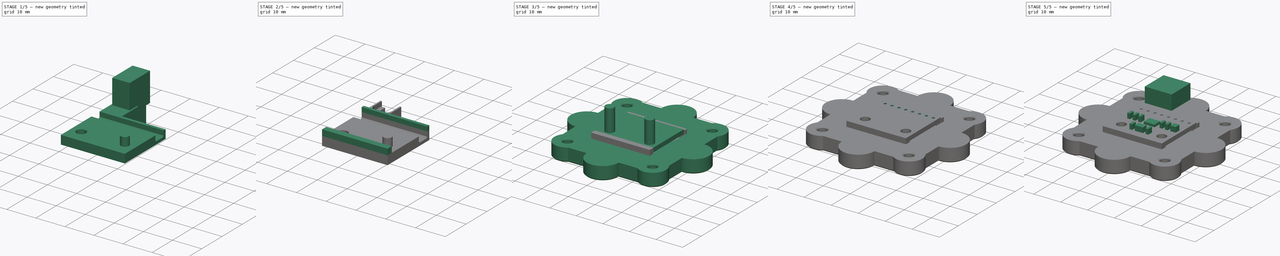
[diagram: build sequence overview — one tinted view per stage of 5, left to right]
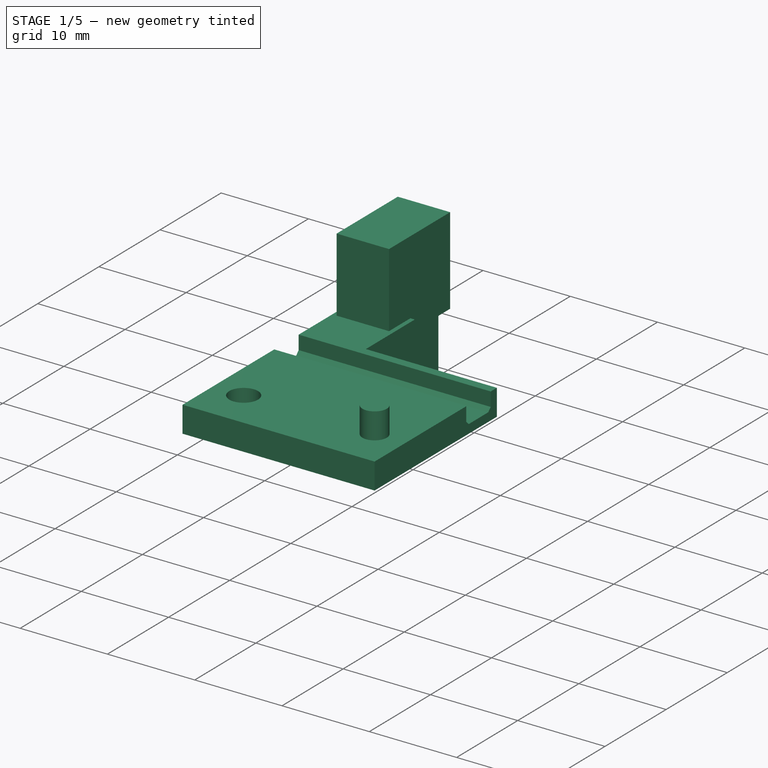
[diagram: stage 1 of 5 — iso view after this stage's code; geometry added in this stage tinted green]
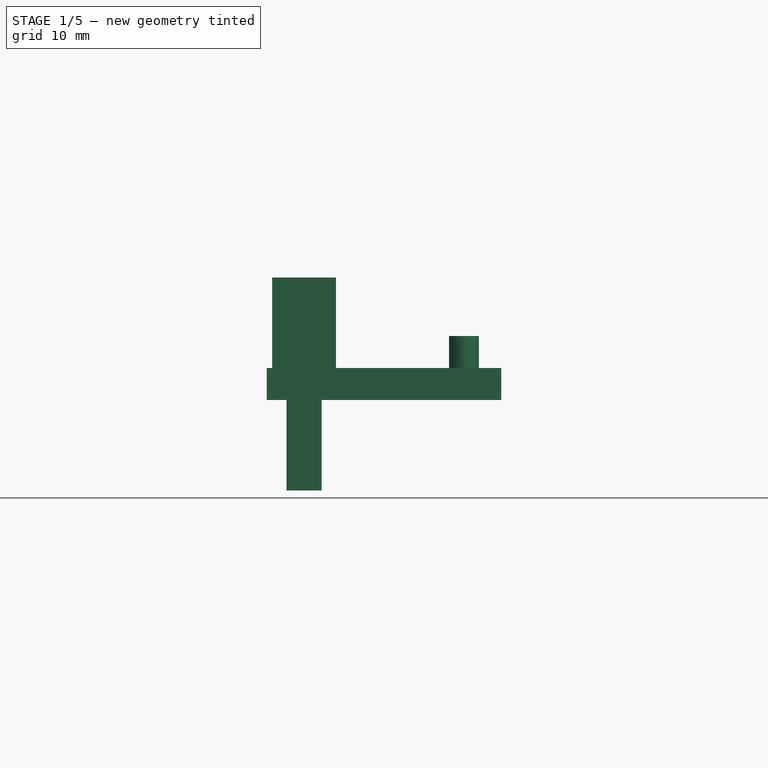
[diagram: stage 1 of 5 — front view after this stage's code; geometry added in this stage tinted green]
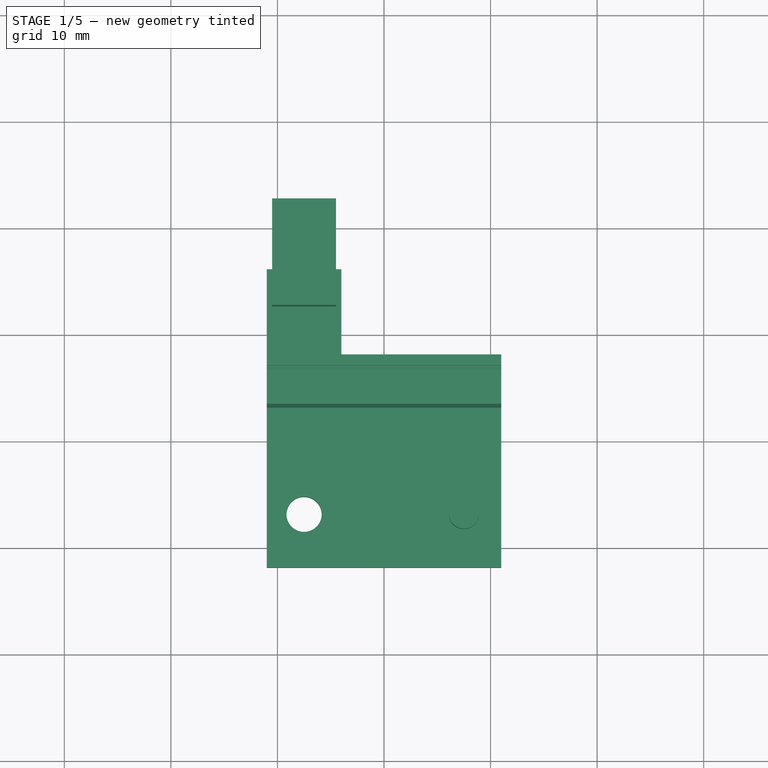
[diagram: stage 1 of 5 — top view after this stage's code; geometry added in this stage tinted green]
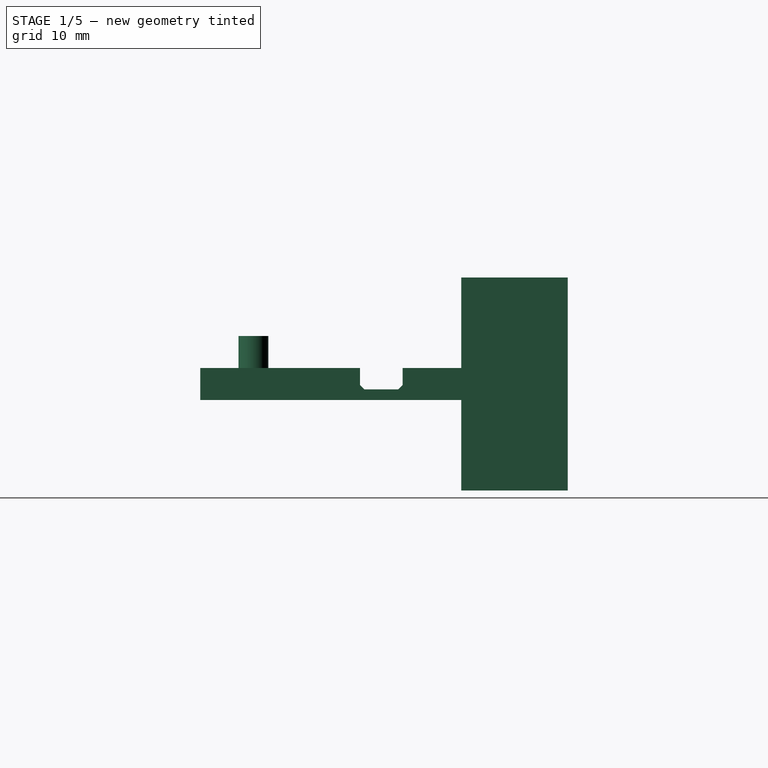
[diagram: stage 1 of 5 — right view after this stage's code; geometry added in this stage tinted green]
FCSTD DOCUMENT  (FreeCAD 0.19R24291 (Git))
Label: ADXL345-mounter
License: All rights reserved
LicenseURL: http://en.wikipedia.org/wiki/All_rights_reserved
objects: Part::Box×19, Part::Cylinder×14, Part::Cut×9, Part::MultiFuse×5, Sketcher::SketchObject×5, Part::Chamfer×3, PartDesign::Pocket×3, PartDesign::Pad×3, PartDesign::FeatureBase×1, PartDesign::Chamfer×1, PartDesign::Body×1
note: 71 computed .brp shape members not serialized (recipe doc carries the construction recipe); baked Part::Feature solids carry a one-line shape summary decoded from their .brp

FEATURE [Part::Cylinder] Cylinder012
  Angle = 360
  AttacherType = Attacher::AttachEngine3D
  Height = 3
  Placement = pos=(7.5,3,0) rot=(0,0,1;0rad)
  Radius = 1.4
FEATURE [Part::Box] Box011  label="Cube011"
  AttacherType = Attacher::AttachEngine3D
  Height = 3
  Length = 22
  Placement = pos=(-11,-2,-3) rot=(0,0,1;0rad)
  Width = 28
FEATURE [Part::Box] Box013  label="Cube013"
  AttacherType = Attacher::AttachEngine3D
  Height = 5
  Length = 22
  Placement = pos=(-11,13,-2) rot=(0,0,1;0rad)
  Width = 4
FEATURE [Part::Chamfer] Chamfer
  Base = -> Box013
  Edges = 2 edges r=0.4: [Edge9,Edge11]
FEATURE [Part::Box] Box014  label="Cube014"
  AttacherType = Attacher::AttachEngine3D
  Height = 10
  Length = 16
  Placement = pos=(-4,18,-4.5) rot=(0,0,1;0rad)
  Width = 12
FEATURE [Part::Cylinder] Cylinder013
  Angle = 360
  AttacherType = Attacher::AttachEngine3D
  Height = 10
  Placement = pos=(-7.5,3,-3.5) rot=(0,0,1;0rad)
  Radius = 1.65
FEATURE [Part::Cut] Cut002
  Base = -> Box011
  Tool = -> Chamfer
FEATURE [Part::Cut] Cut003
  Base = -> Cut002
  Tool = -> Box014
FEATURE [Part::Cut] Cut009
  Base = -> Cut003
  Tool = -> Cylinder013
FEATURE [Part::MultiFuse] Fusion002008
  Shapes = -> [Cut009,Cylinder012]
FEATURE [Part::Box] Box017  label="Cube017"
  AttacherType = Attacher::AttachEngine3D
  Height = 10
  Length = 3.3
  Placement = pos=(-9.15,22.5,-11.5) rot=(0,0,1;0rad)
  Width = 10
  expr: Length = 1.65 * 2
FEATURE [Part::Box] Box018  label="Cube018"
  AttacherType = Attacher::AttachEngine3D
  Height = 10
  Length = 6
  Placement = pos=(-10.5,22.5,-1.5) rot=(0,0,1;0rad)
  Width = 10
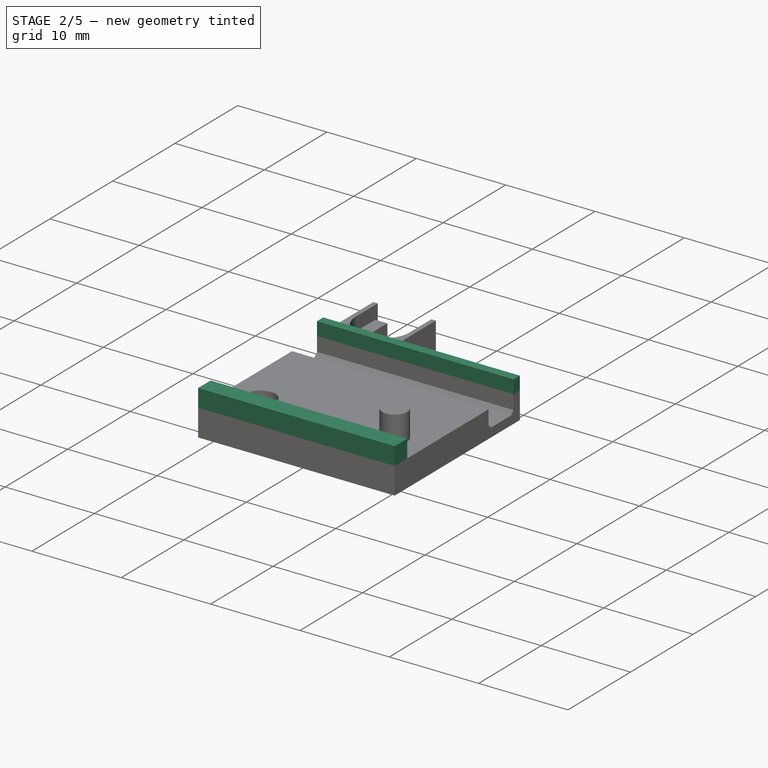
[diagram: stage 2 of 5 — iso view after this stage's code; geometry added in this stage tinted green]
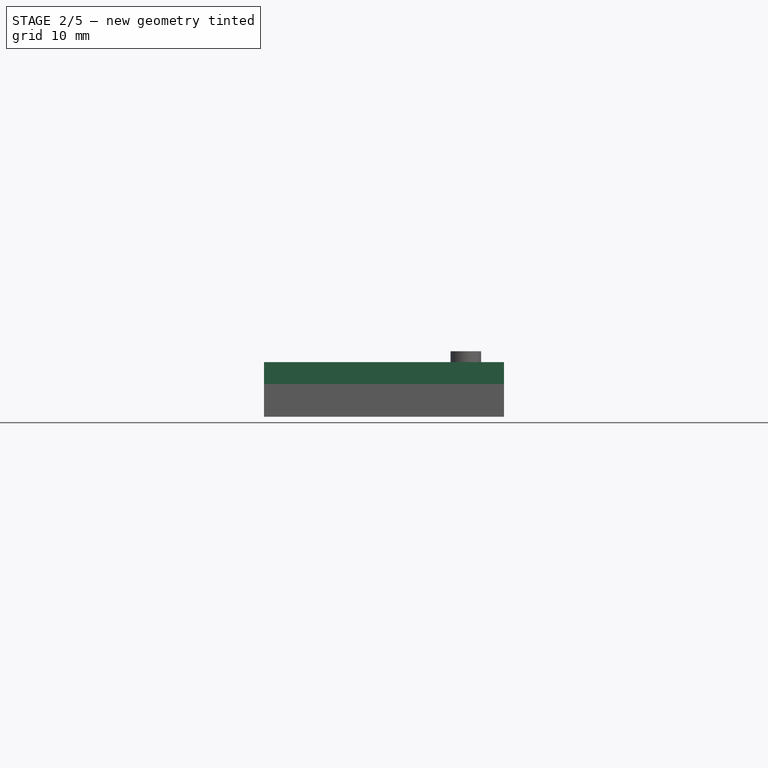
[diagram: stage 2 of 5 — front view after this stage's code; geometry added in this stage tinted green]
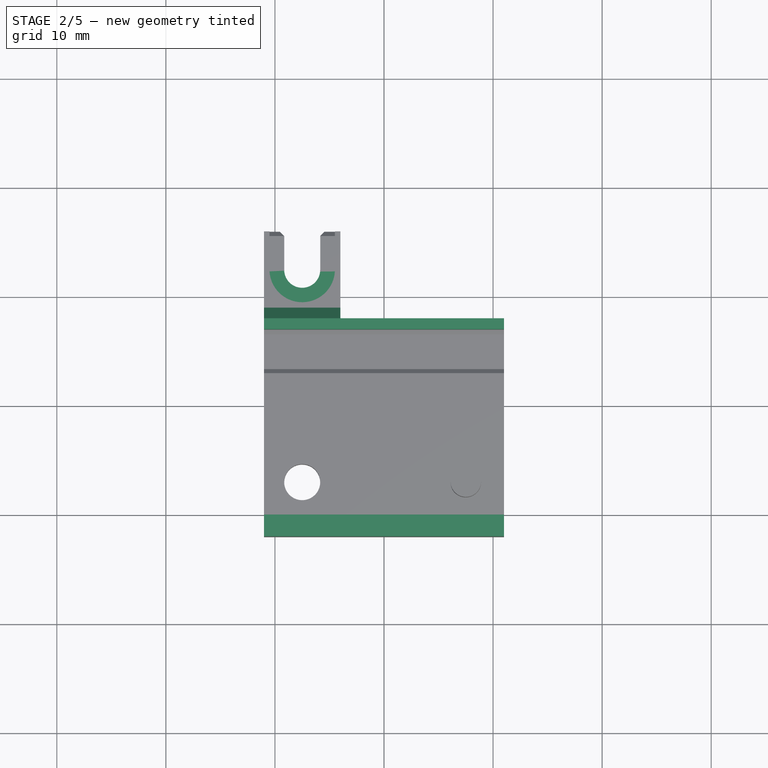
[diagram: stage 2 of 5 — top view after this stage's code; geometry added in this stage tinted green]
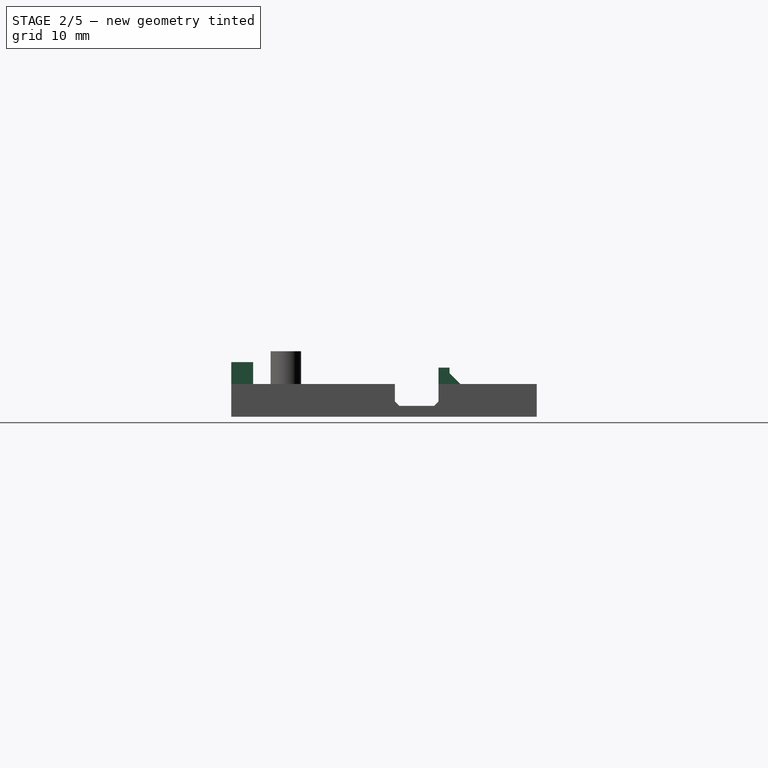
[diagram: stage 2 of 5 — right view after this stage's code; geometry added in this stage tinted green]
FEATURE [Part::Cylinder] Cylinder011
  Angle = 360
  AttacherType = Attacher::AttachEngine3D
  Height = 10
  Placement = pos=(-7.5,22.5,-1.5) rot=(0,0,1;0rad)
  Radius = 3
FEATURE [Part::Box] Box012  label="Cube012"
  AttacherType = Attacher::AttachEngine3D
  Height = 5
  Length = 22
  Placement = pos=(-11,-2,-3) rot=(0,0,1;0rad)
  Width = 2
FEATURE [Part::Cylinder] Cylinder014
  Angle = 360
  AttacherType = Attacher::AttachEngine3D
  Height = 10
  Placement = pos=(-7.5,22.5,-6.5) rot=(0,0,1;0rad)
  Radius = 1.65
FEATURE [Part::Box] Box015  label="Cube015"
  AttacherType = Attacher::AttachEngine3D
  Height = 1.5
  Length = 22
  Placement = pos=(-11,17,0) rot=(0,0,1;0rad)
  Width = 1
FEATURE [Part::Cut] Cut010
  Base = -> Fusion002008
  Tool = -> Cylinder011
FEATURE [Part::Cut] Cut011
  Base = -> Cut010
  Tool = -> Cylinder014
FEATURE [Part::MultiFuse] Fusion002009
  Shapes = -> [Box015,Cut011,Box012]
FEATURE [Part::Chamfer] Chamfer001
  Base = -> Fusion002009
  Edges = 1 edges r=1: [Edge10]
FEATURE [Part::Cut] Cut012
  Base = -> Chamfer001
  Tool = -> Box017
FEATURE [Part::Cut] Cut013
  Base = -> Cut012
  Tool = -> Box018
FEATURE [Part::Chamfer] Chamfer002  label="sensor-r1"
  Base = -> Cut013
  Edges = 4 edges r=0.4: [Edge41,Edge42,Edge68,Edge70]
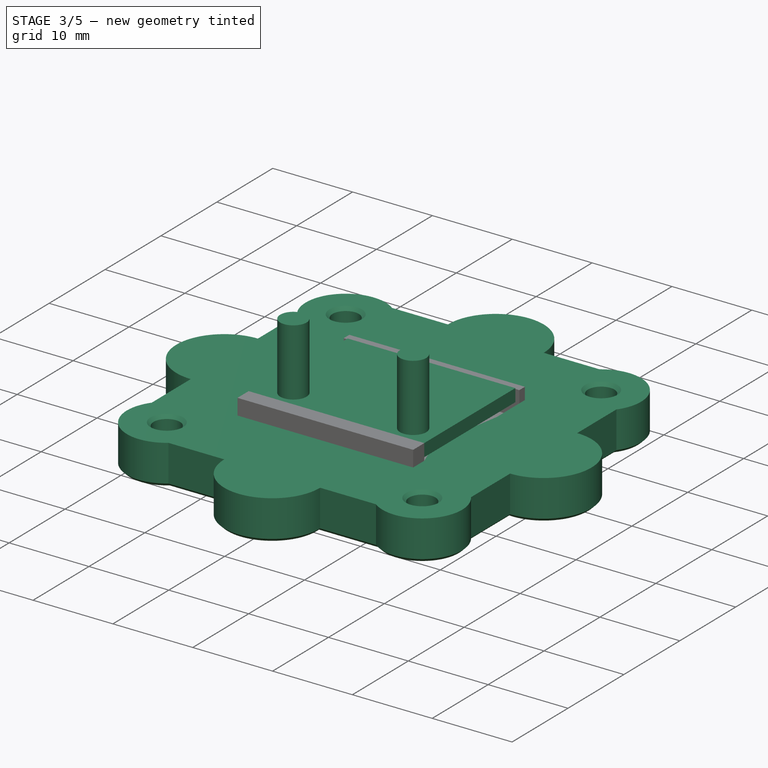
[diagram: stage 3 of 5 — iso view after this stage's code; geometry added in this stage tinted green]
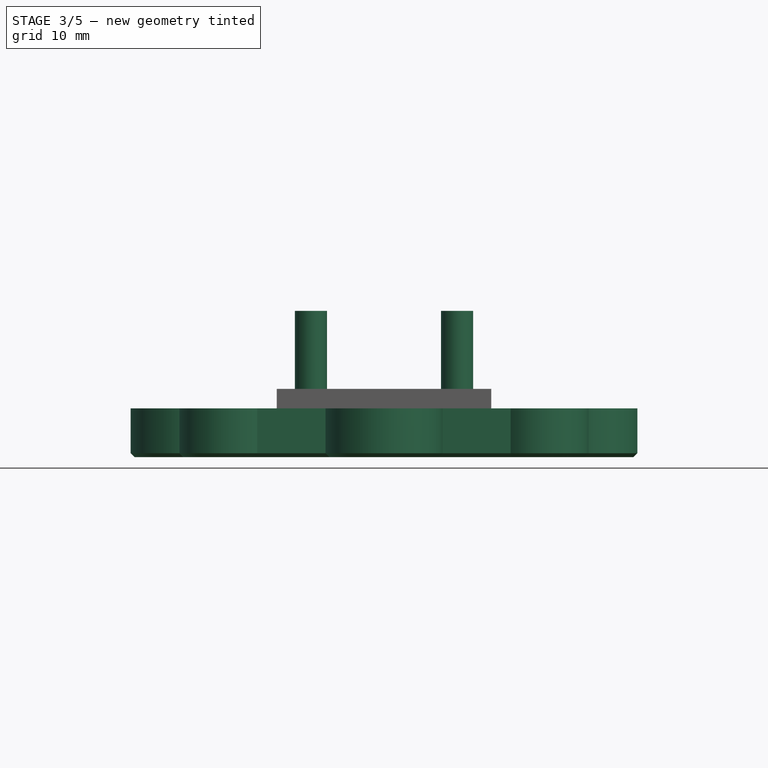
[diagram: stage 3 of 5 — front view after this stage's code; geometry added in this stage tinted green]
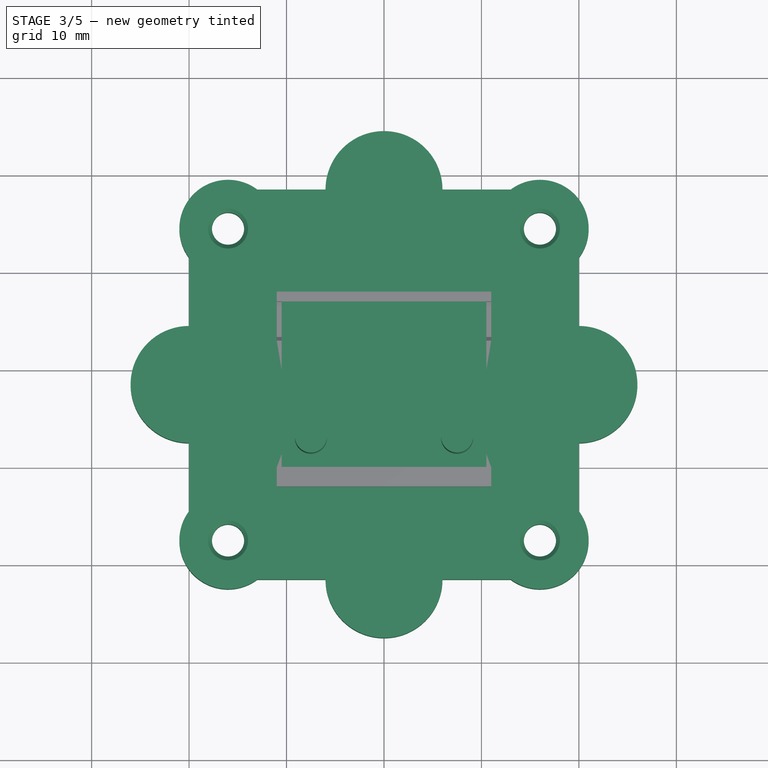
[diagram: stage 3 of 5 — top view after this stage's code; geometry added in this stage tinted green]
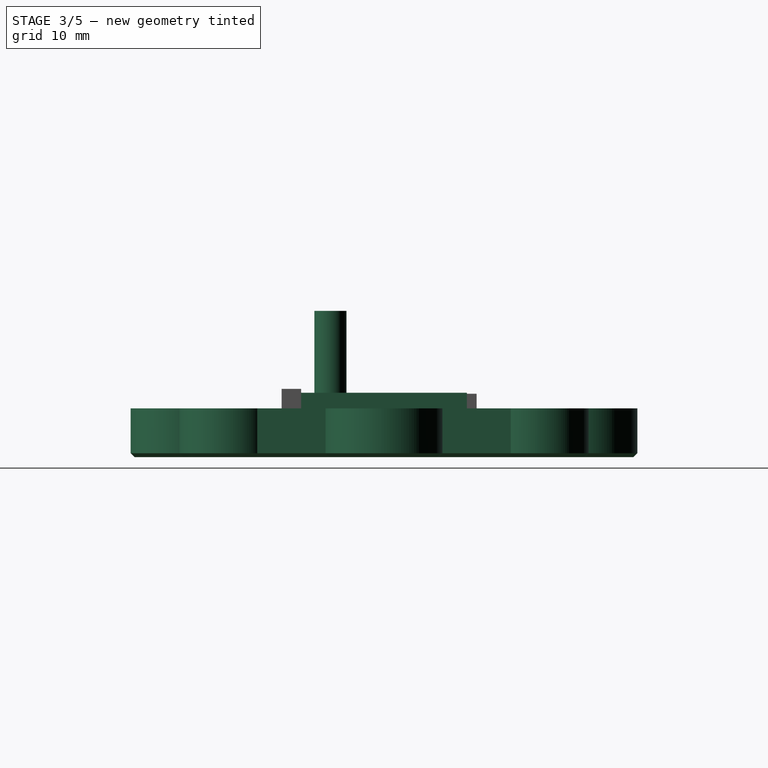
[diagram: stage 3 of 5 — right view after this stage's code; geometry added in this stage tinted green]
FEATURE [Part::Box] Box  label="Cube"
  AttacherType = Attacher::AttachEngine3D
  Height = 1.6
  Length = 21
  Placement = pos=(-10.5,0,0) rot=(0,0,1;0rad)
  Width = 17
FEATURE [Part::Cylinder] Cylinder
  Angle = 360
  AttacherType = Attacher::AttachEngine3D
  Height = 10
  Placement = pos=(-7.5,2.5,0) rot=(0,0,1;0rad)
  Radius = 1.65
FEATURE [Part::Cylinder] Cylinder001
  Angle = 360
  AttacherType = Attacher::AttachEngine3D
  Height = 10
  Placement = pos=(7.5,2.5,0) rot=(0,0,1;0rad)
  Radius = 1.65
FEATURE [Part::MultiFuse] Fusion
  Placement = pos=(0,0.5,0) rot=(0,0,1;0rad)
  Shapes = -> [Cylinder,Cylinder001]
FEATURE [PartDesign::FeatureBase] BaseFeature
  BaseFeature = -> Chamfer002
FEATURE [Sketcher::SketchObject] Sketch
  ExternalGeometry = -> [BaseFeature]
  FullyConstrained = true
  MapMode = 5
  Placement = pos=(0,0,1.5) rot=(0,0,1;0rad)
  Support = -> [BaseFeature]
  sketch-geometry (4):
    g0: LineSegment StartX=-4 StartY=26 StartZ=0 EndX=-11 EndY=26 EndZ=0
    g1: LineSegment StartX=-11 StartY=26 StartZ=0 EndX=-11 EndY=18 EndZ=0
    g2: LineSegment StartX=-11 StartY=18 StartZ=0 EndX=-4 EndY=18 EndZ=0
    g3: LineSegment StartX=-4 StartY=18 StartZ=0 EndX=-4 EndY=26 EndZ=0
  constraints (10):
    c: Coincident(g0,g1)
    c: Coincident(g1,g2)
    c: Coincident(g2,g3)
    c: Coincident(g3,g0)
    c: Horizontal(g0)
    c: Horizontal(g2)
    c: Vertical(g1)
    c: Vertical(g3)
    c: Coincident(g0,g-5)
    c: Coincident(g1,g-4)
FEATURE [PartDesign::Pocket] Pocket
  BaseFeature = -> BaseFeature
  Length = 5
  Length2 = 100
  Profile = -> Sketch
  Refine = true
  Type = 1
FEATURE [PartDesign::Pad] Pad
  BaseFeature = -> Pocket
  Direction = (1,1,1)
  Length = 2
  Length2 = 100
  Profile = -> Pocket [Face11]
  Refine = true
  Type = 0
FEATURE [Sketcher::SketchObject] Sketch001
  ExternalGeometry = -> [Pad]
  FullyConstrained = true
  MapMode = 5
  Placement = pos=(0,0,3) rot=(0,0,1;0rad)
  Support = -> [Pad]
  sketch-geometry (2):
    g0: Circle CenterX=-7.5 CenterY=3 CenterZ=0 NormalX=0 NormalY=0 NormalZ=1 AngleXU=0 Radius=2
    g1: Circle CenterX=7.5 CenterY=3 CenterZ=0 NormalX=0 NormalY=0 NormalZ=1 AngleXU=0 Radius=2
  constraints (4):
    c: Coincident(g0,g-4)
    c: Coincident(g1,g-3)
    c: Equal(g1,g0)
    c: Radius(g1) = 2
FEATURE [PartDesign::Pocket] Pocket001
  BaseFeature = -> Pad
  Length = 5
  Length2 = 100
  Profile = -> Sketch001
  Type = 1
FEATURE [Sketcher::SketchObject] Sketch002
  ExternalGeometry = -> [Pocket001]
  FullyConstrained = true
  MapMode = 5
  Placement = pos=(0,0,-5) rot=(1,0,0;3.14159rad)
  Support = -> [Pocket001]
  sketch-geometry (17):
    g0: Circle CenterX=-16 CenterY=7.5 CenterZ=0 NormalX=0 NormalY=0 NormalZ=1 AngleXU=0 Radius=1.65
    g1: Circle CenterX=-16 CenterY=-24.5 CenterZ=0 NormalX=0 NormalY=0 NormalZ=1 AngleXU=0 Radius=1.65
    g2: Circle CenterX=16 CenterY=-24.5 CenterZ=0 NormalX=0 NormalY=0 NormalZ=1 AngleXU=0 Radius=1.65
    g3: Circle CenterX=16 CenterY=7.5 CenterZ=0 NormalX=0 NormalY=0 NormalZ=1 AngleXU=0 Radius=1.65
    g4: GeomPoint X=-11 Y=-8.5 Z=0
    g5: ArcOfCircle CenterX=-16 CenterY=7.5 CenterZ=0 NormalX=0 NormalY=0 NormalZ=1 AngleXU=0 Radius=5 StartAngle=0.927295 EndAngle=3.78509
    g6: ArcOfCircle CenterX=16 CenterY=7.5 CenterZ=0 NormalX=0 NormalY=0 NormalZ=1 AngleXU=0 Radius=5 StartAngle=5.63968 EndAngle=8.49748
    g7: ArcOfCircle CenterX=-16 CenterY=-24.5 CenterZ=0 NormalX=0 NormalY=0 NormalZ=1 AngleXU=0 Radius=5 StartAngle=2.49809 EndAngle=5.35589
    g8: ArcOfCircle CenterX=16 CenterY=-24.5 CenterZ=0 NormalX=0 NormalY=0 NormalZ=1 AngleXU=0 Radius=5 StartAngle=4.06889 EndAngle=6.92669
    g9: LineSegment StartX=-13 StartY=11.5 StartZ=0 EndX=13 EndY=11.5 EndZ=0
    g10: LineSegment StartX=20 StartY=4.5 StartZ=0 EndX=20 EndY=-21.5 EndZ=0
    g11: LineSegment StartX=-13 StartY=-28.5 StartZ=0 EndX=13 EndY=-28.5 EndZ=0
    g12: LineSegment StartX=-20 StartY=-21.5 StartZ=0 EndX=-20 EndY=4.5 EndZ=0
    g13: LineSegment StartX=-11 StartY=2 StartZ=0 EndX=11 EndY=2 EndZ=0
    g14: LineSegment StartX=11 StartY=2 StartZ=0 EndX=11 EndY=-18 EndZ=0
    g15: LineSegment StartX=11 StartY=-18 StartZ=0 EndX=-11 EndY=-18 EndZ=0
    g16: LineSegment StartX=-11 StartY=-18 StartZ=0 EndX=-11 EndY=2 EndZ=0
  constraints (49):
    c: Horizontal(g0,g3)
    c: Horizontal(g1,g2)
    c: Vertical(g1,g0)
    c: Vertical(g2,g3)
    c: DistanceX(g0,g-1) = 16
    c: DistanceX(g0,g3) = 32
    c: DistanceY(g1,g0) = 32
    c: Equal(g1,g0)
    c: Equal(g0,g3)
    c: Equal(g3,g2)
    c: Radius(g3) = 1.65
    c: Vertical(g4,g-3)
    c: DistanceY(g-4,g-3) = 17
    c: DistanceY(g4,g-3) = 8.5
    c: DistanceY(g4,g0) = 16
    c: Coincident(g5,g0)
    c: Coincident(g6,g3)
    c: Coincident(g7,g1)
    c: Coincident(g8,g2)
    c: Equal(g7,g8)
    c: Equal(g8,g6)
    c: Equal(g6,g5)
    c: Radius(g5) = 5
    c: Horizontal(g9)
    c: Vertical(g10)
    c: Horizontal(g11)
    c: Vertical(g12)
    c: DistanceX(g12,g-1) = 20
    c: DistanceX(g-1,g10) = 20
    c: DistanceY(g4,g9) = 20
    c: DistanceY(g11,g4) = 20
    c: Coincident(g5,g9)
    c: Coincident(g5,g12)
    c: Coincident(g7,g12)
    c: Coincident(g7,g11)
    c: Coincident(g8,g11)
    c: Coincident(g8,g10)
    c: Coincident(g6,g10)
    c: Coincident(g6,g9)
    c: Coincident(g13,g14)
    c: Coincident(g14,g15)
    c: Coincident(g15,g16)
    c: Coincident(g16,g13)
    c: Horizontal(g13)
    c: Horizontal(g15)
    c: Vertical(g14)
    c: Vertical(g16)
    c: Coincident(g13,g-5)
    c: Coincident(g14,g-6)
FEATURE [PartDesign::Pad] Pad001
  BaseFeature = -> Pocket001
  Direction = (1,1,1)
  Length = 5
  Length2 = 100
  Profile = -> Sketch002
  Refine = true
  Reversed = true
  Type = 0
FEATURE [Sketcher::SketchObject] Sketch003
  ExternalGeometry = -> [Pad001]
  FullyConstrained = true
  MapMode = 5
  Placement = pos=(0,0,-5) rot=(1,0,0;3.14159rad)
  Support = -> [Pad001]
  sketch-geometry (4):
    g0: Circle CenterX=0 CenterY=11.5 CenterZ=0 NormalX=0 NormalY=0 NormalZ=1 AngleXU=0 Radius=6
    g1: Circle CenterX=0 CenterY=-28.5 CenterZ=0 NormalX=0 NormalY=0 NormalZ=1 AngleXU=0 Radius=6
    g2: Circle CenterX=-20 CenterY=-8.5 CenterZ=0 NormalX=0 NormalY=0 NormalZ=1 AngleXU=0 Radius=6
    g3: Circle CenterX=20 CenterY=-8.5 CenterZ=0 NormalX=0 NormalY=0 NormalZ=1 AngleXU=0 Radius=6
  constraints (12):
    c: PointOnObject(g0,g-2)
    c: PointOnObject(g1,g-2)
    c: Horizontal(g2,g3)
    c: Equal(g2,g1)
    c: Equal(g1,g3)
    c: Equal(g3,g0)
    c: Radius(g3) = 6
    c: Horizontal(g-3,g0)
    c: Horizontal(g-6,g1)
    c: Vertical(g2,g-4)
    c: Vertical(g3,g-5)
    c: DistanceY(g-6,g3) = 20
FEATURE [PartDesign::Pad] Pad002
  BaseFeature = -> Pad001
  Direction = (1,1,1)
  Length = 5
  Length2 = 100
  Profile = -> Sketch003
  Refine = true
  Reversed = true
  Type = 0
FEATURE [Sketcher::SketchObject] Sketch004
  ExternalGeometry = -> [Pad002]
  FullyConstrained = true
  MapMode = 5
  Placement = pos=(0,0,-5) rot=(1,0,0;3.14159rad)
  Support = -> [Pad002]
  sketch-geometry (4):
    g0: Circle CenterX=-20 CenterY=-8.5 CenterZ=0 NormalX=0 NormalY=0 NormalZ=1 AngleXU=0 Radius=3.05
    g1: Circle CenterX=0 CenterY=-28.5 CenterZ=0 NormalX=0 NormalY=0 NormalZ=1 AngleXU=0 Radius=3.05
    g2: Circle CenterX=20 CenterY=-8.5 CenterZ=0 NormalX=0 NormalY=0 NormalZ=1 AngleXU=0 Radius=3.05
    g3: Circle CenterX=0 CenterY=11.5 CenterZ=0 NormalX=0 NormalY=0 NormalZ=1 AngleXU=0 Radius=3.05
  constraints (8):
    c: Coincident(g0,g-4)
    c: Coincident(g1,g-5)
    c: Coincident(g2,g-6)
    c: Coincident(g3,g-3)
    c: Equal(g0,g3)
    c: Equal(g3,g2)
    c: Equal(g2,g1)
    c: Radius(g2) = 3.05
FEATURE [PartDesign::Pocket] Pocket002
  BaseFeature = -> Pad002
  Length = 3.5
  Length2 = 100
  Profile = -> Sketch004
  Type = 0
FEATURE [PartDesign::Chamfer] Chamfer003
  Angle = 45
  Base = -> Pocket002 [Face2,Edge62,Edge58,Edge59,Edge63,Edge61,Edge60]
  BaseFeature = -> Pocket002
  ChamferType = 0
  FlipDirection = false
  Size = 0.4
  Size2 = 1
  SupportTransform = false
FEATURE [PartDesign::Body] Body
  BaseFeature = -> Chamfer002
  Group = -> [BaseFeature,Sketch,Pocket,Pad,Sketch001,Pocket001,Sketch002,Pad001,Sketch003,Pad002,Sketch004,Pocket002,Chamfer003]
  Origin = -> Origin
  Tip = -> Chamfer003
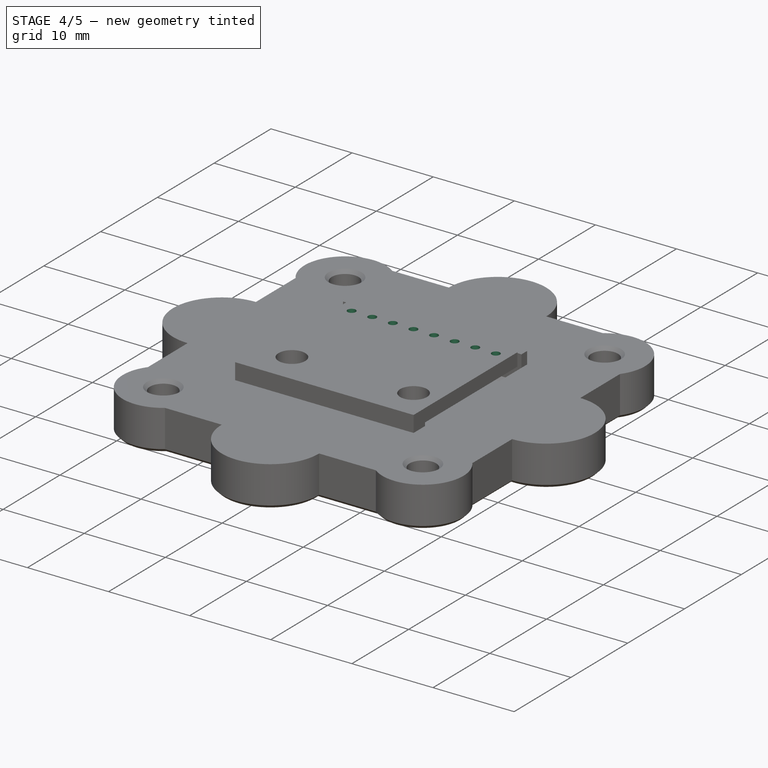
[diagram: stage 4 of 5 — iso view after this stage's code; geometry added in this stage tinted green]
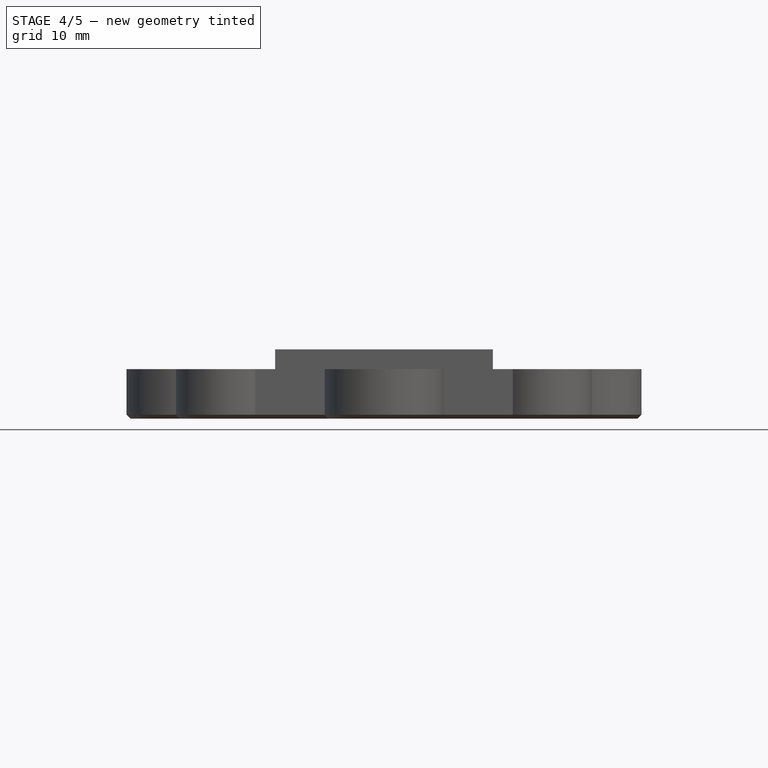
[diagram: stage 4 of 5 — front view after this stage's code; geometry added in this stage tinted green]
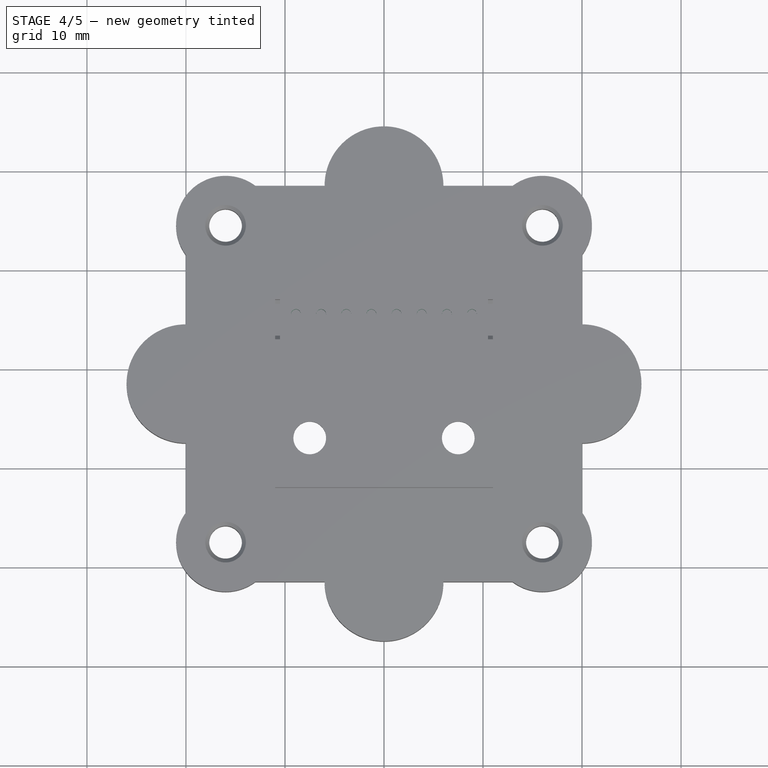
[diagram: stage 4 of 5 — top view after this stage's code; geometry added in this stage tinted green]
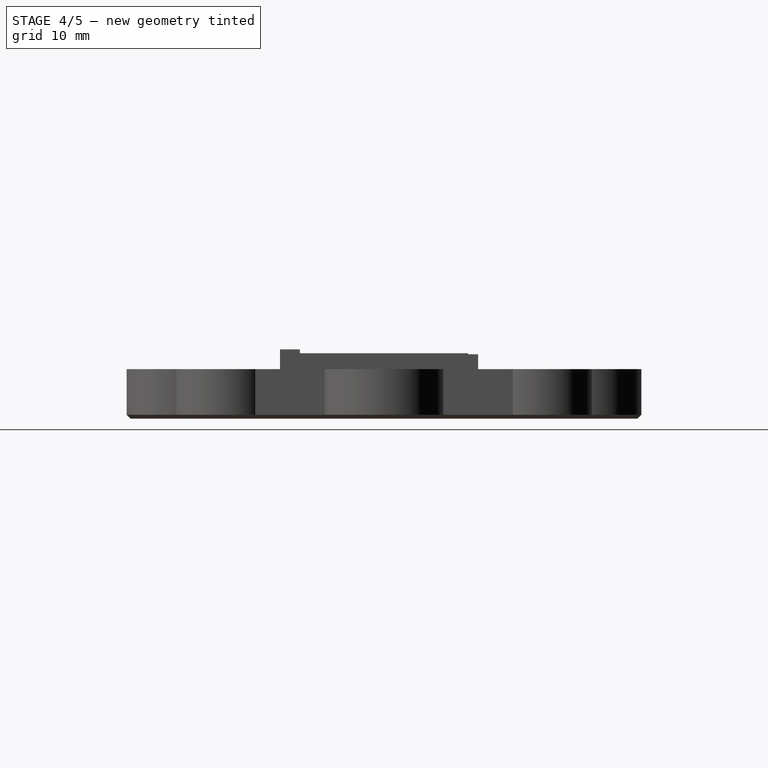
[diagram: stage 4 of 5 — right view after this stage's code; geometry added in this stage tinted green]
FEATURE [Part::Cylinder] Cylinder002
  Angle = 360
  AttacherType = Attacher::AttachEngine3D
  Height = 10
  Placement = pos=(-1.27,15,0) rot=(0,0,1;0rad)
  Radius = 0.5
FEATURE [Part::Cylinder] Cylinder003
  Angle = 360
  AttacherType = Attacher::AttachEngine3D
  Height = 10
  Placement = pos=(1.27,15,0) rot=(0,0,1;0rad)
  Radius = 0.5
FEATURE [Part::Cylinder] Cylinder004
  Angle = 360
  AttacherType = Attacher::AttachEngine3D
  Height = 10
  Placement = pos=(3.81,15,0) rot=(0,0,1;0rad)
  Radius = 0.5
FEATURE [Part::Cylinder] Cylinder005
  Angle = 360
  AttacherType = Attacher::AttachEngine3D
  Height = 10
  Placement = pos=(-3.81,15,0) rot=(0,0,1;0rad)
  Radius = 0.5
FEATURE [Part::Cylinder] Cylinder006
  Angle = 360
  AttacherType = Attacher::AttachEngine3D
  Height = 10
  Placement = pos=(-6.35,15,0) rot=(0,0,1;0rad)
  Radius = 0.5
FEATURE [Part::Cylinder] Cylinder007
  Angle = 360
  AttacherType = Attacher::AttachEngine3D
  Height = 10
  Placement = pos=(6.35,15,0) rot=(0,0,1;0rad)
  Radius = 0.5
FEATURE [Part::Cylinder] Cylinder008
  Angle = 360
  AttacherType = Attacher::AttachEngine3D
  Height = 10
  Placement = pos=(8.89,15,0) rot=(0,0,1;0rad)
  Radius = 0.5
FEATURE [Part::Cylinder] Cylinder009
  Angle = 360
  AttacherType = Attacher::AttachEngine3D
  Height = 10
  Placement = pos=(-8.89,15,0) rot=(0,0,1;0rad)
  Radius = 0.5
FEATURE [Part::MultiFuse] Fusion001
  Placement = pos=(0,0.5,0) rot=(0,0,1;0rad)
  Shapes = -> [Cylinder009,Cylinder007,Cylinder008,Cylinder006,Cylinder005,Cylinder004,Cylinder003,Cylinder002]
FEATURE [Part::Cut] Cut
  Base = -> Box
  Tool = -> Fusion
FEATURE [Part::Cut] Cut008
  Base = -> Cut
  Tool = -> Fusion001
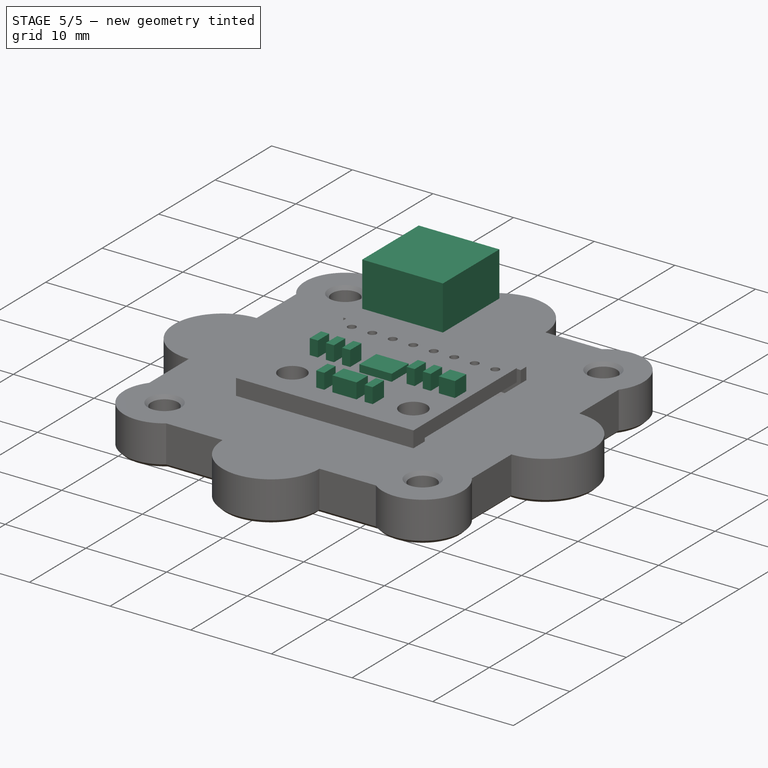
[diagram: stage 5 of 5 — iso view after this stage's code; geometry added in this stage tinted green]
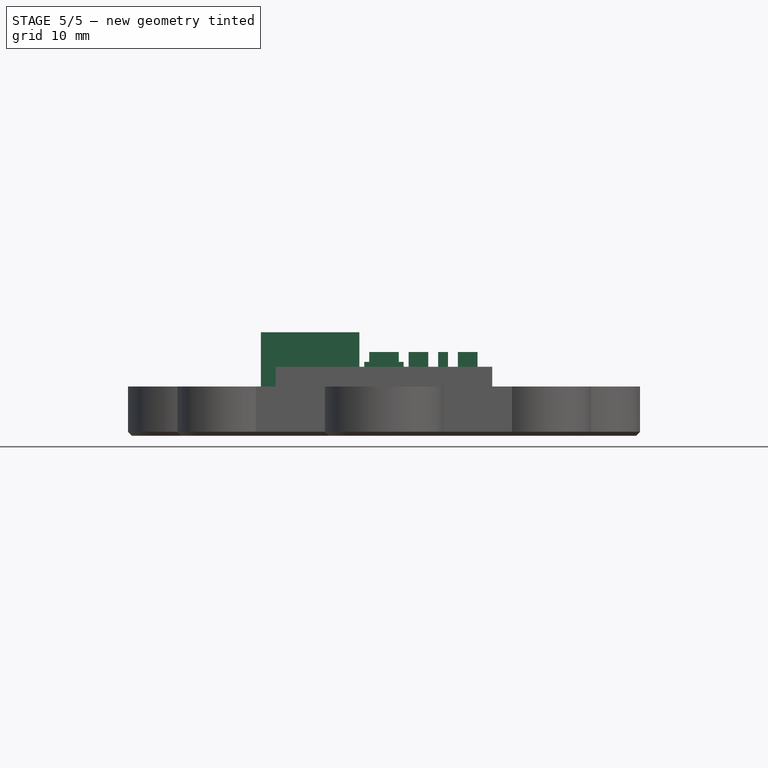
[diagram: stage 5 of 5 — front view after this stage's code; geometry added in this stage tinted green]
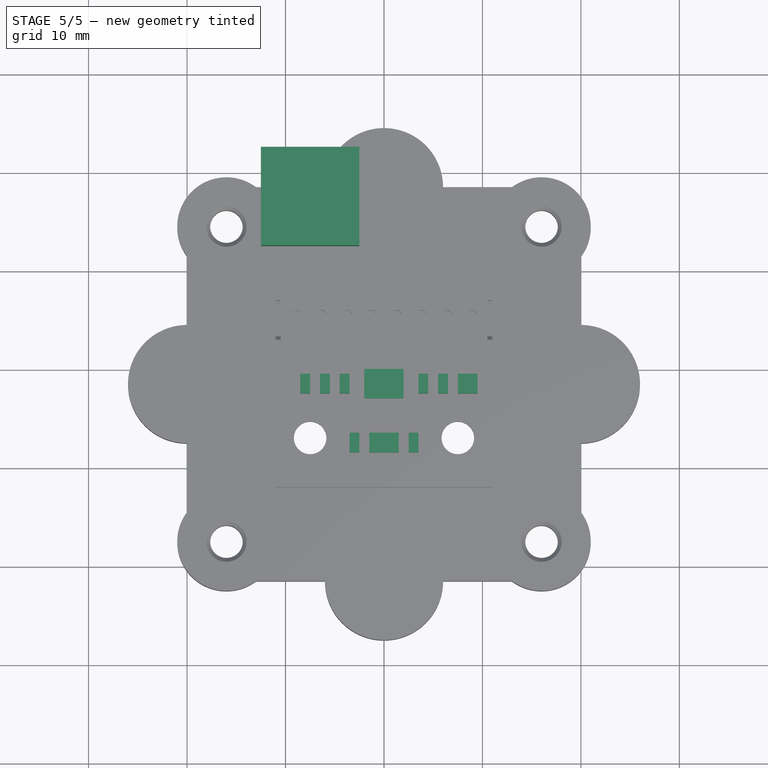
[diagram: stage 5 of 5 — top view after this stage's code; geometry added in this stage tinted green]
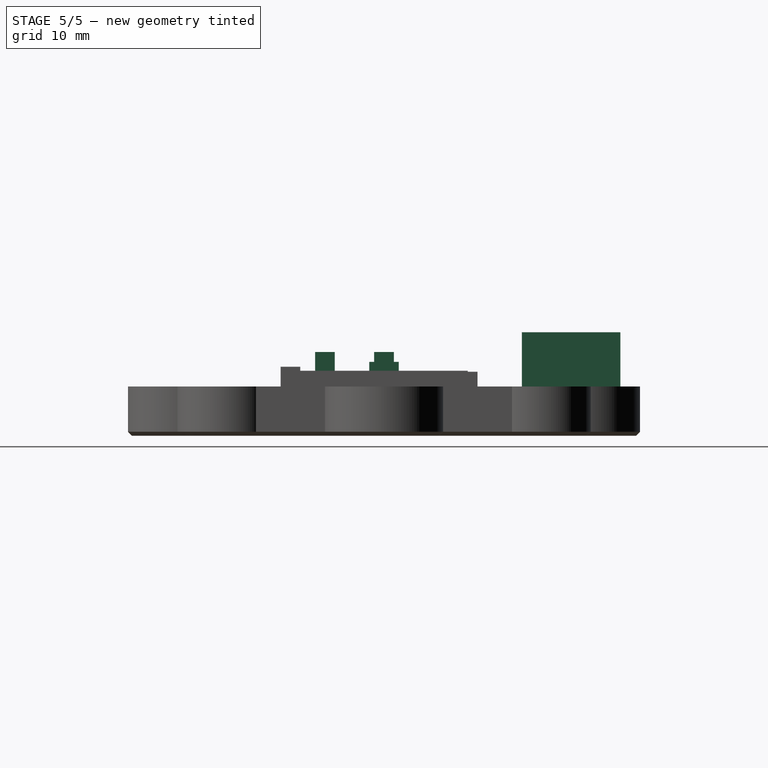
[diagram: stage 5 of 5 — right view after this stage's code; geometry added in this stage tinted green]
FEATURE [Part::Box] Box001  label="Cube001"
  AttacherType = Attacher::AttachEngine3D
  Height = 2.5
  Length = 4
  Placement = pos=(-2,7,0) rot=(0,0,1;0rad)
  Width = 3
FEATURE [Part::Box] Box002  label="Cube002"
  AttacherType = Attacher::AttachEngine3D
  Height = 3.5
  Length = 3
  Placement = pos=(-1.5,1.5,0) rot=(0,0,1;0rad)
  Width = 2
FEATURE [Part::Box] Box003  label="Cube003"
  AttacherType = Attacher::AttachEngine3D
  Height = 3.5
  Length = 1
  Placement = pos=(-3.5,1.5,0) rot=(0,0,1;0rad)
  Width = 2
FEATURE [Part::Box] Box004  label="Cube004"
  AttacherType = Attacher::AttachEngine3D
  Height = 3.5
  Length = 1
  Placement = pos=(2.5,1.5,0) rot=(0,0,1;0rad)
  Width = 2
FEATURE [Part::Box] Box005  label="Cube005"
  AttacherType = Attacher::AttachEngine3D
  Height = 3.5
  Length = 1
  Placement = pos=(-4.5,7.5,0) rot=(0,0,1;0rad)
  Width = 2
FEATURE [Part::Box] Box006  label="Cube006"
  AttacherType = Attacher::AttachEngine3D
  Height = 3.5
  Length = 1
  Placement = pos=(-6.5,7.5,0) rot=(0,0,1;0rad)
  Width = 2
FEATURE [Part::Box] Box007  label="Cube007"
  AttacherType = Attacher::AttachEngine3D
  Height = 3.5
  Length = 1
  Placement = pos=(-8.5,7.5,0) rot=(0,0,1;0rad)
  Width = 2
FEATURE [Part::Box] Box008  label="Cube008"
  AttacherType = Attacher::AttachEngine3D
  Height = 3.5
  Length = 1
  Placement = pos=(3.5,7.5,0) rot=(0,0,1;0rad)
  Width = 2
FEATURE [Part::Box] Box009  label="Cube009"
  AttacherType = Attacher::AttachEngine3D
  Height = 3.5
  Length = 1
  Placement = pos=(5.5,7.5,0) rot=(0,0,1;0rad)
  Width = 2
FEATURE [Part::Box] Box010  label="Cube010"
  AttacherType = Attacher::AttachEngine3D
  Height = 3.5
  Length = 2
  Placement = pos=(7.5,7.5,0) rot=(0,0,1;0rad)
  Width = 2
FEATURE [Part::Box] Box016  label="Cube016"
  AttacherType = Attacher::AttachEngine3D
  Height = 10
  Length = 10
  Placement = pos=(-12.5,22.5,-4.5) rot=(0,0,1;0rad)
  Width = 10
FEATURE [Part::MultiFuse] Fusion002007  label="ADXL345"
  Shapes = -> [Cut008,Box001,Box002,Box003,Box004,Box005,Box006,Box007,Box008,Box009,Box010]
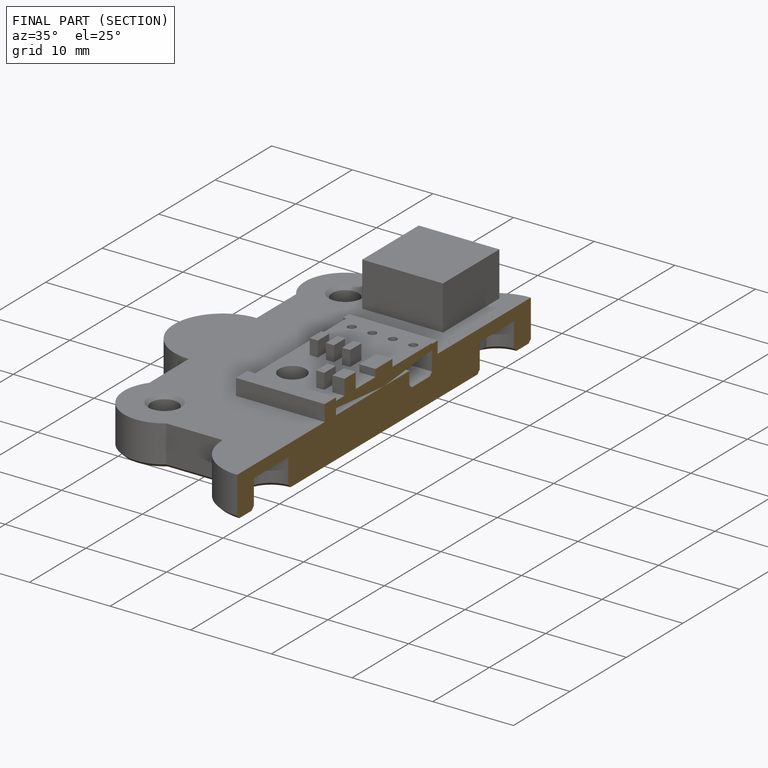
[diagram: finished part — half-section view (interior)]
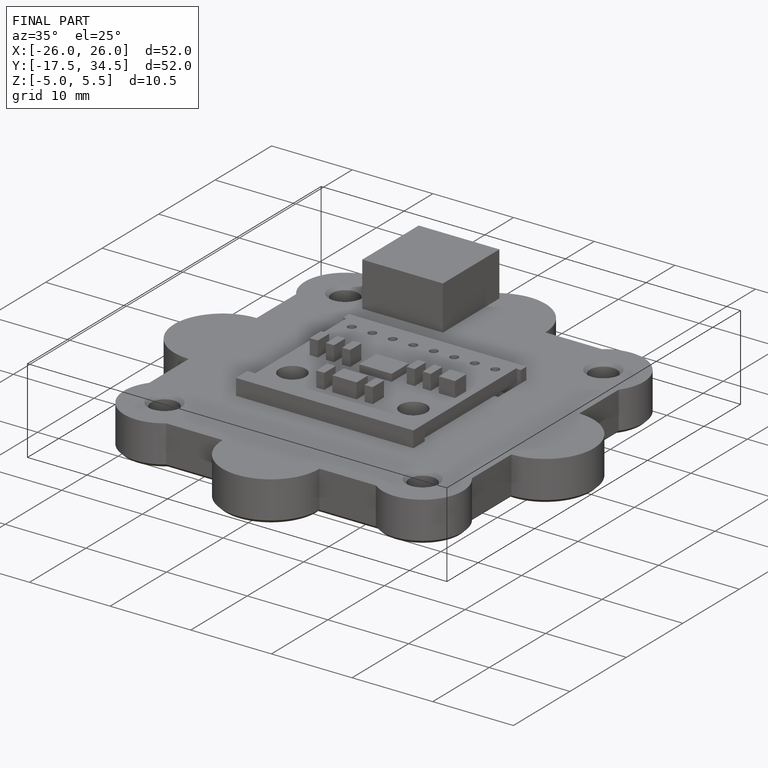
[diagram: finished part — iso view with bounding-box wireframe]
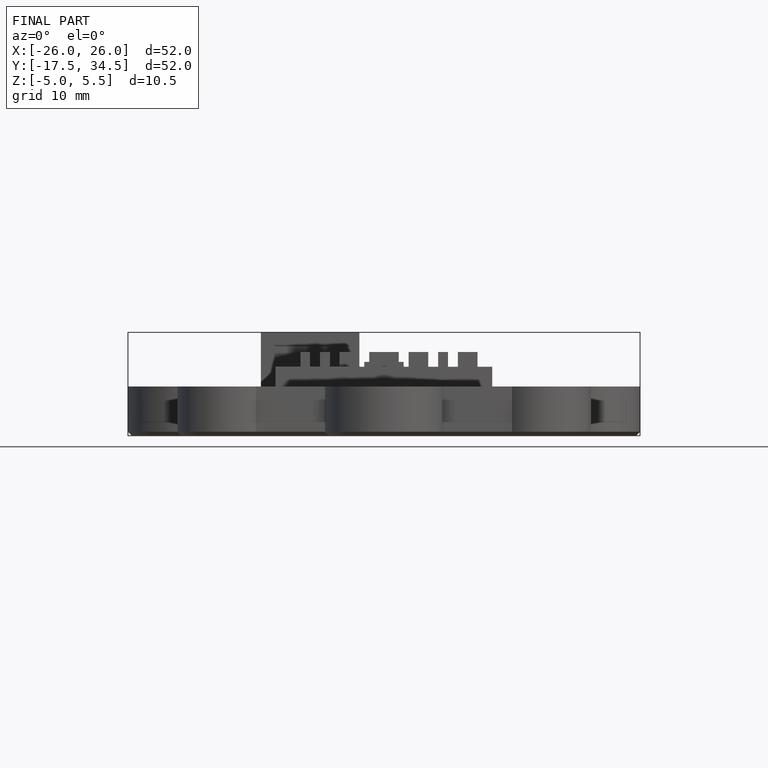
[diagram: finished part — front view with bounding-box wireframe]
